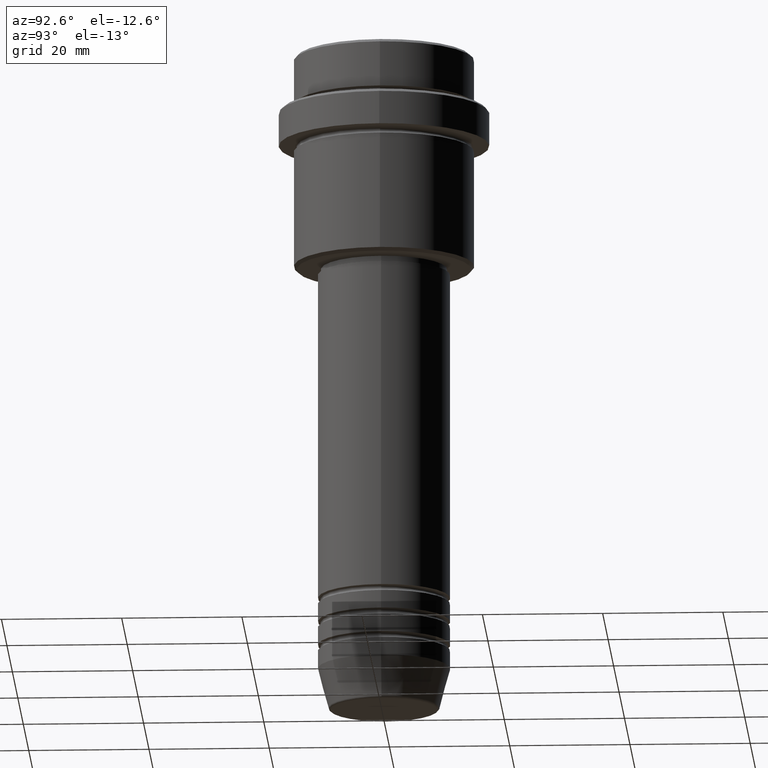
[diagram: clean part render]
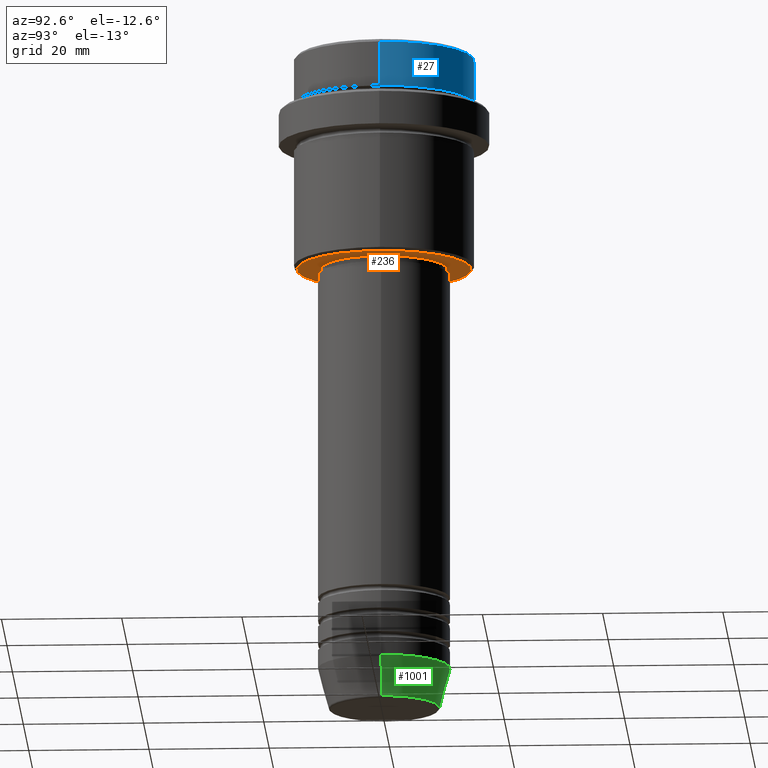
[diagram: same view with three faces highlighted in distinct colors, each labeled with its STEP entity id]
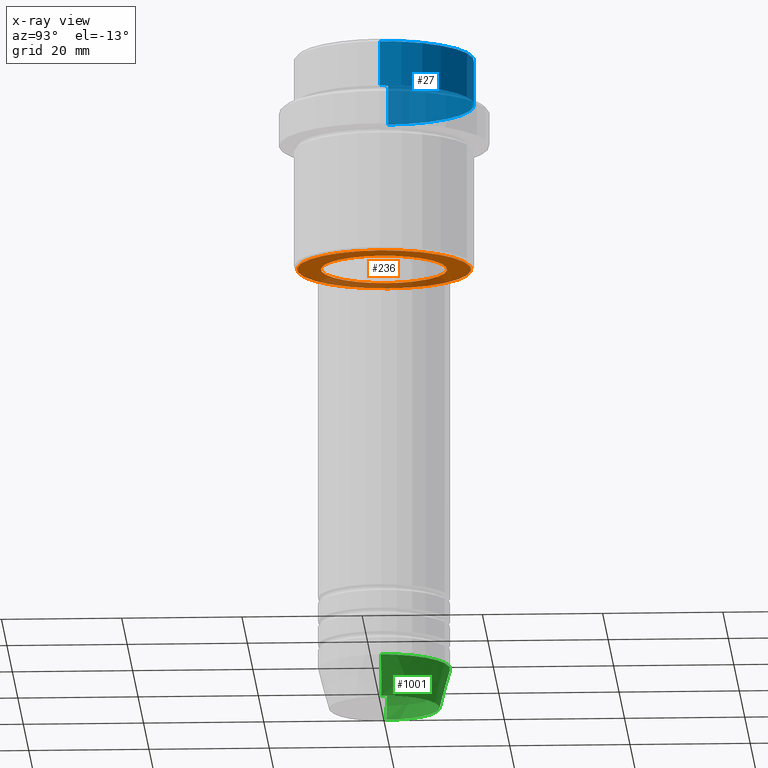
[diagram: x-ray of the same camera — body ghosted, the three highlighted faces saturated]
A machine part, auxiliary view with three faces highlighted in distinct colors.
The next image is the same camera in x-ray (body ghosted, the three faces saturated) — at least one of them is partly hidden behind the body in this view.
Their STEP definitions:

[orange] entity #236 — the highlighted planar face has unit normal (0, 0, -1).
#45 = CIRCLE ( 'NONE', #482, 10.49999999999999289 ) ;
#46 = CARTESIAN_POINT ( 'NONE',  ( 0.000000000000000000, 0.000000000000000000, -36.00000000000000711 ) ) ;
#79 = ORIENTED_EDGE ( 'NONE', *, *, #394, .T. ) ;
#114 = CARTESIAN_POINT ( 'NONE',  ( 0.000000000000000000, 15.00000000000000000, -36.00000000000000711 ) ) ;
#125 = DIRECTION ( 'NONE',  ( -0.000000000000000000, -0.000000000000000000, 1.000000000000000000 ) ) ;
#134 = PLANE ( 'NONE',  #806 ) ;
#156 = EDGE_CURVE ( 'NONE', #1228, #705, #779, .T. ) ;
#163 = DIRECTION ( 'NONE',  ( 0.000000000000000000, 0.000000000000000000, -1.000000000000000000 ) ) ;
#169 = CARTESIAN_POINT ( 'NONE',  ( 0.000000000000000000, 0.000000000000000000, -36.00000000000000711 ) ) ;
#236 = ADVANCED_FACE ( 'NONE', ( #1344, #677 ), #134, .T. ) ;
#252 = CARTESIAN_POINT ( 'NONE',  ( 10.49999999999999289, 0.000000000000000000, -36.00000000000000711 ) ) ;
#254 = DIRECTION ( 'NONE',  ( -1.000000000000000000, 0.000000000000000000, 0.000000000000000000 ) ) ;
#385 = CIRCLE ( 'NONE', #807, 14.49999999999999645 ) ;
#394 = EDGE_CURVE ( 'NONE', #486, #667, #385, .T. ) ;
#421 = DIRECTION ( 'NONE',  ( 1.000000000000000000, 0.000000000000000000, 0.000000000000000000 ) ) ;
#462 = DIRECTION ( 'NONE',  ( 0.000000000000000000, 0.000000000000000000, -1.000000000000000000 ) ) ;
#482 = AXIS2_PLACEMENT_3D ( 'NONE', #46, #125, #576 ) ;
#486 = VERTEX_POINT ( 'NONE', #684 ) ;
#537 = CARTESIAN_POINT ( 'NONE',  ( 0.000000000000000000, 0.000000000000000000, -36.00000000000000711 ) ) ;
#576 = DIRECTION ( 'NONE',  ( 1.000000000000000000, 0.000000000000000000, 0.000000000000000000 ) ) ;
#641 = DIRECTION ( 'NONE',  ( -1.000000000000000000, 0.000000000000000000, 0.000000000000000000 ) ) ;
#657 = EDGE_CURVE ( 'NONE', #705, #1228, #45, .T. ) ;
#666 = AXIS2_PLACEMENT_3D ( 'NONE', #537, #1400, #421 ) ;
#667 = VERTEX_POINT ( 'NONE', #1024 ) ;
#677 = FACE_BOUND ( 'NONE', #954, .T. ) ;
#684 = CARTESIAN_POINT ( 'NONE',  ( -14.49999999999999645, 1.806354028742345802E-15, -36.00000000000000711 ) ) ;
#705 = VERTEX_POINT ( 'NONE', #1384 ) ;
#727 = EDGE_LOOP ( 'NONE', ( #1225, #79 ) ) ;
#779 = CIRCLE ( 'NONE', #666, 10.49999999999999289 ) ;
#806 = AXIS2_PLACEMENT_3D ( 'NONE', #114, #462, #1013 ) ;
#807 = AXIS2_PLACEMENT_3D ( 'NONE', #169, #1266, #254 ) ;
#949 = EDGE_CURVE ( 'NONE', #667, #486, #1055, .T. ) ;
#954 = EDGE_LOOP ( 'NONE', ( #1027, #1197 ) ) ;
#1013 = DIRECTION ( 'NONE',  ( -1.000000000000000000, 0.000000000000000000, -0.000000000000000000 ) ) ;
#1024 = CARTESIAN_POINT ( 'NONE',  ( 14.49999999999999645, 0.000000000000000000, -36.00000000000000711 ) ) ;
#1027 = ORIENTED_EDGE ( 'NONE', *, *, #156, .T. ) ;
#1055 = CIRCLE ( 'NONE', #1167, 14.49999999999999645 ) ;
#1154 = CARTESIAN_POINT ( 'NONE',  ( 0.000000000000000000, 0.000000000000000000, -36.00000000000000711 ) ) ;
#1167 = AXIS2_PLACEMENT_3D ( 'NONE', #1154, #163, #641 ) ;
#1197 = ORIENTED_EDGE ( 'NONE', *, *, #657, .T. ) ;
#1225 = ORIENTED_EDGE ( 'NONE', *, *, #949, .T. ) ;
#1228 = VERTEX_POINT ( 'NONE', #252 ) ;
#1266 = DIRECTION ( 'NONE',  ( 0.000000000000000000, 0.000000000000000000, -1.000000000000000000 ) ) ;
#1344 = FACE_OUTER_BOUND ( 'NONE', #727, .T. ) ;
#1384 = CARTESIAN_POINT ( 'NONE',  ( -10.49999999999999289, 1.285879139104720042E-15, -36.00000000000000711 ) ) ;
#1400 = DIRECTION ( 'NONE',  ( -0.000000000000000000, -0.000000000000000000, 1.000000000000000000 ) ) ;

[blue] entity #27 — the highlighted cylindrical surface (partial cylindrical patch) has radius 15 mm, axis along (-0, -0, 1).
#27 = ADVANCED_FACE ( 'NONE', ( #96 ), #117, .T. ) ;
#28 = DIRECTION ( 'NONE',  ( 1.000000000000000000, 0.000000000000000000, 0.000000000000000000 ) ) ;
#55 = VERTEX_POINT ( 'NONE', #1334 ) ;
#96 = FACE_OUTER_BOUND ( 'NONE', #1376, .T. ) ;
#117 = CYLINDRICAL_SURFACE ( 'NONE', #1113, 15.00000000000000000 ) ;
#159 = ORIENTED_EDGE ( 'NONE', *, *, #370, .T. ) ;
#175 = VERTEX_POINT ( 'NONE', #430 ) ;
#196 = ORIENTED_EDGE ( 'NONE', *, *, #720, .T. ) ;
#302 = CARTESIAN_POINT ( 'NONE',  ( 0.000000000000000000, 0.000000000000000000, -0.4999999999999970024 ) ) ;
#306 = DIRECTION ( 'NONE',  ( -0.000000000000000000, -0.000000000000000000, 1.000000000000000000 ) ) ;
#323 = ORIENTED_EDGE ( 'NONE', *, *, #1288, .F. ) ;
#345 = CARTESIAN_POINT ( 'NONE',  ( 0.000000000000000000, 0.000000000000000000, 0.000000000000000000 ) ) ;
#370 = EDGE_CURVE ( 'NONE', #55, #175, #555, .T. ) ;
#430 = CARTESIAN_POINT ( 'NONE',  ( 15.00000000000000000, 0.000000000000000000, -0.4999999999999970024 ) ) ;
#488 = LINE ( 'NONE', #932, #787 ) ;
#555 = CIRCLE ( 'NONE', #781, 15.00000000000000000 ) ;
#565 = LINE ( 'NONE', #1396, #1353 ) ;
#655 = DIRECTION ( 'NONE',  ( 1.000000000000000000, 0.000000000000000000, 0.000000000000000000 ) ) ;
#690 = DIRECTION ( 'NONE',  ( 1.000000000000000000, 0.000000000000000000, 0.000000000000000000 ) ) ;
#696 = VERTEX_POINT ( 'NONE', #723 ) ;
#699 = DIRECTION ( 'NONE',  ( -0.000000000000000000, -0.000000000000000000, 1.000000000000000000 ) ) ;
#720 = EDGE_CURVE ( 'NONE', #800, #55, #565, .T. ) ;
#723 = CARTESIAN_POINT ( 'NONE',  ( 15.00000000000000000, 0.000000000000000000, -7.999999999999998224 ) ) ;
#761 = DIRECTION ( 'NONE',  ( 0.000000000000000000, 0.000000000000000000, -1.000000000000000000 ) ) ;
#781 = AXIS2_PLACEMENT_3D ( 'NONE', #302, #761, #655 ) ;
#787 = VECTOR ( 'NONE', #1362, 1000.000000000000000 ) ;
#800 = VERTEX_POINT ( 'NONE', #1359 ) ;
#828 = CIRCLE ( 'NONE', #988, 15.00000000000000000 ) ;
#840 = ORIENTED_EDGE ( 'NONE', *, *, #884, .T. ) ;
#884 = EDGE_CURVE ( 'NONE', #696, #800, #828, .T. ) ;
#932 = CARTESIAN_POINT ( 'NONE',  ( 15.00000000000000000, 0.000000000000000000, 0.000000000000000000 ) ) ;
#988 = AXIS2_PLACEMENT_3D ( 'NONE', #1313, #1206, #28 ) ;
#1113 = AXIS2_PLACEMENT_3D ( 'NONE', #345, #699, #690 ) ;
#1206 = DIRECTION ( 'NONE',  ( -0.000000000000000000, -0.000000000000000000, 1.000000000000000000 ) ) ;
#1288 = EDGE_CURVE ( 'NONE', #696, #175, #488, .T. ) ;
#1313 = CARTESIAN_POINT ( 'NONE',  ( 0.000000000000000000, 0.000000000000000000, -7.999999999999998224 ) ) ;
#1334 = CARTESIAN_POINT ( 'NONE',  ( -15.00000000000000000, 1.836970198721029589E-15, -0.4999999999999970024 ) ) ;
#1353 = VECTOR ( 'NONE', #306, 1000.000000000000000 ) ;
#1359 = CARTESIAN_POINT ( 'NONE',  ( -15.00000000000000000, 1.836970198721029589E-15, -7.999999999999998224 ) ) ;
#1362 = DIRECTION ( 'NONE',  ( -0.000000000000000000, -0.000000000000000000, 1.000000000000000000 ) ) ;
#1376 = EDGE_LOOP ( 'NONE', ( #840, #196, #159, #323 ) ) ;
#1396 = CARTESIAN_POINT ( 'NONE',  ( -15.00000000000000000, 1.836970198721029589E-15, 0.000000000000000000 ) ) ;

[green] entity #1001 — the highlighted conical surface has half-angle 15 deg.
#93 = ORIENTED_EDGE ( 'NONE', *, *, #1366, .T. ) ;
#126 = EDGE_CURVE ( 'NONE', #846, #1180, #1148, .T. ) ;
#127 = ORIENTED_EDGE ( 'NONE', *, *, #126, .F. ) ;
#174 = AXIS2_PLACEMENT_3D ( 'NONE', #1007, #415, #1380 ) ;
#179 = CONICAL_SURFACE ( 'NONE', #241, 11.00000000000000000, 0.2617993877991505181 ) ;
#241 = AXIS2_PLACEMENT_3D ( 'NONE', #473, #917, #643 ) ;
#277 = EDGE_CURVE ( 'NONE', #846, #360, #714, .T. ) ;
#283 = CIRCLE ( 'NONE', #1214, 11.00000000000000000 ) ;
#360 = VERTEX_POINT ( 'NONE', #863 ) ;
#391 = DIRECTION ( 'NONE',  ( 0.2588190451025217942, 0.000000000000000000, 0.9659258262890679791 ) ) ;
#415 = DIRECTION ( 'NONE',  ( -0.000000000000000000, -0.000000000000000000, 1.000000000000000000 ) ) ;
#473 = CARTESIAN_POINT ( 'NONE',  ( 0.000000000000000000, 0.000000000000000000, -104.0000000000000000 ) ) ;
#513 = LINE ( 'NONE', #953, #1196 ) ;
#614 = CARTESIAN_POINT ( 'NONE',  ( 11.00000000000000000, 0.000000000000000000, -104.0000000000000000 ) ) ;
#643 = DIRECTION ( 'NONE',  ( 1.000000000000000000, 0.000000000000000000, 0.000000000000000000 ) ) ;
#681 = EDGE_CURVE ( 'NONE', #1180, #1026, #283, .T. ) ;
#714 = CIRCLE ( 'NONE', #174, 9.223655072137189492 ) ;
#735 = VECTOR ( 'NONE', #391, 1000.000000000000000 ) ;
#759 = CARTESIAN_POINT ( 'NONE',  ( 9.223655072137189492, 0.000000000000000000, -110.6294095225512564 ) ) ;
#795 = CARTESIAN_POINT ( 'NONE',  ( -11.00000000000000000, 1.347111479062088405E-15, -104.0000000000000000 ) ) ;
#802 = FACE_OUTER_BOUND ( 'NONE', #963, .T. ) ;
#846 = VERTEX_POINT ( 'NONE', #759 ) ;
#863 = CARTESIAN_POINT ( 'NONE',  ( -9.223655072137189492, 1.238341722557647004E-15, -110.6294095225512564 ) ) ;
#917 = DIRECTION ( 'NONE',  ( -0.000000000000000000, -0.000000000000000000, 1.000000000000000000 ) ) ;
#953 = CARTESIAN_POINT ( 'NONE',  ( -11.00000000000000000, 1.347111479062088405E-15, -104.0000000000000000 ) ) ;
#963 = EDGE_LOOP ( 'NONE', ( #1242, #93, #1172, #127 ) ) ;
#1001 = ADVANCED_FACE ( 'NONE', ( #802 ), #179, .T. ) ;
#1007 = CARTESIAN_POINT ( 'NONE',  ( 0.000000000000000000, 0.000000000000000000, -110.6294095225512564 ) ) ;
#1026 = VERTEX_POINT ( 'NONE', #795 ) ;
#1066 = DIRECTION ( 'NONE',  ( -0.000000000000000000, -0.000000000000000000, 1.000000000000000000 ) ) ;
#1085 = CARTESIAN_POINT ( 'NONE',  ( 0.000000000000000000, 0.000000000000000000, -104.0000000000000000 ) ) ;
#1148 = LINE ( 'NONE', #1372, #735 ) ;
#1172 = ORIENTED_EDGE ( 'NONE', *, *, #681, .F. ) ;
#1180 = VERTEX_POINT ( 'NONE', #614 ) ;
#1196 = VECTOR ( 'NONE', #1417, 1000.000000000000000 ) ;
#1214 = AXIS2_PLACEMENT_3D ( 'NONE', #1085, #1066, #1261 ) ;
#1242 = ORIENTED_EDGE ( 'NONE', *, *, #277, .T. ) ;
#1261 = DIRECTION ( 'NONE',  ( 1.000000000000000000, 0.000000000000000000, 0.000000000000000000 ) ) ;
#1366 = EDGE_CURVE ( 'NONE', #360, #1026, #513, .T. ) ;
#1372 = CARTESIAN_POINT ( 'NONE',  ( 11.00000000000000000, 0.000000000000000000, -104.0000000000000000 ) ) ;
#1380 = DIRECTION ( 'NONE',  ( 1.000000000000000000, 0.000000000000000000, 0.000000000000000000 ) ) ;
#1417 = DIRECTION ( 'NONE',  ( -0.2588190451025217942, 3.169619151431777884E-17, 0.9659258262890679791 ) ) ;